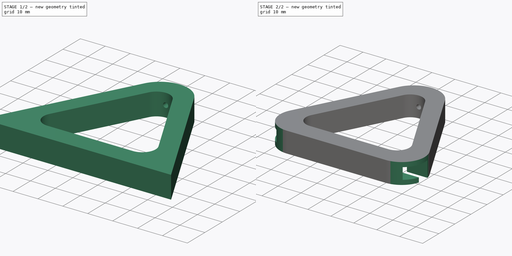
[diagram: build sequence overview — one tinted view per stage of 2, left to right]
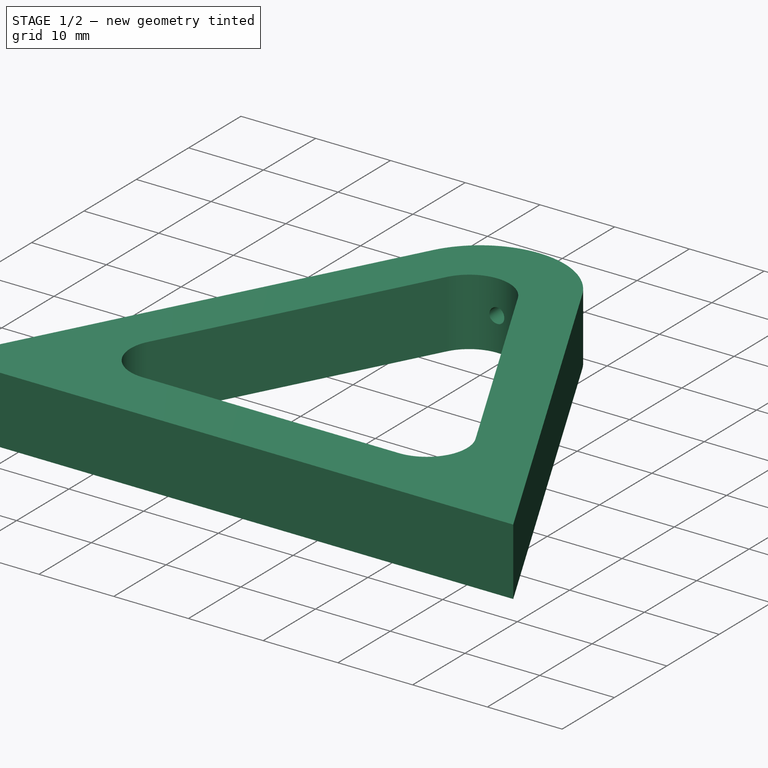
[diagram: stage 1 of 2 — iso view after this stage's code; geometry added in this stage tinted green]
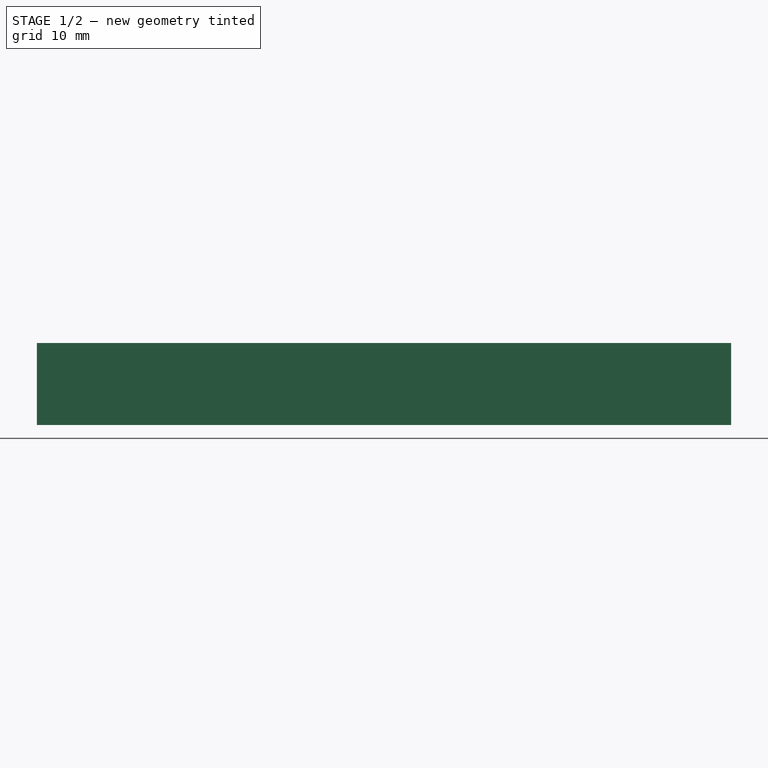
[diagram: stage 1 of 2 — front view after this stage's code; geometry added in this stage tinted green]
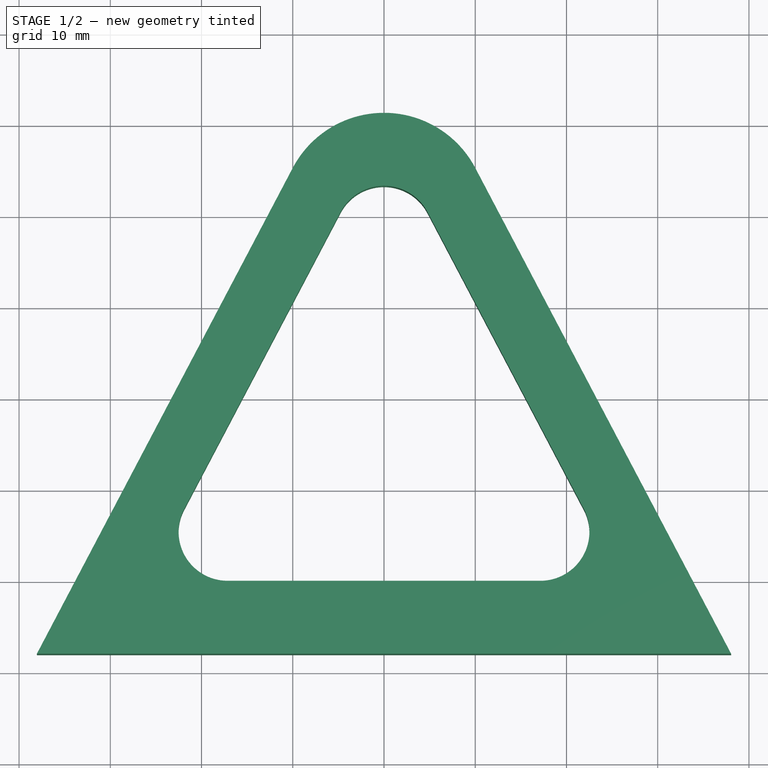
[diagram: stage 1 of 2 — top view after this stage's code; geometry added in this stage tinted green]
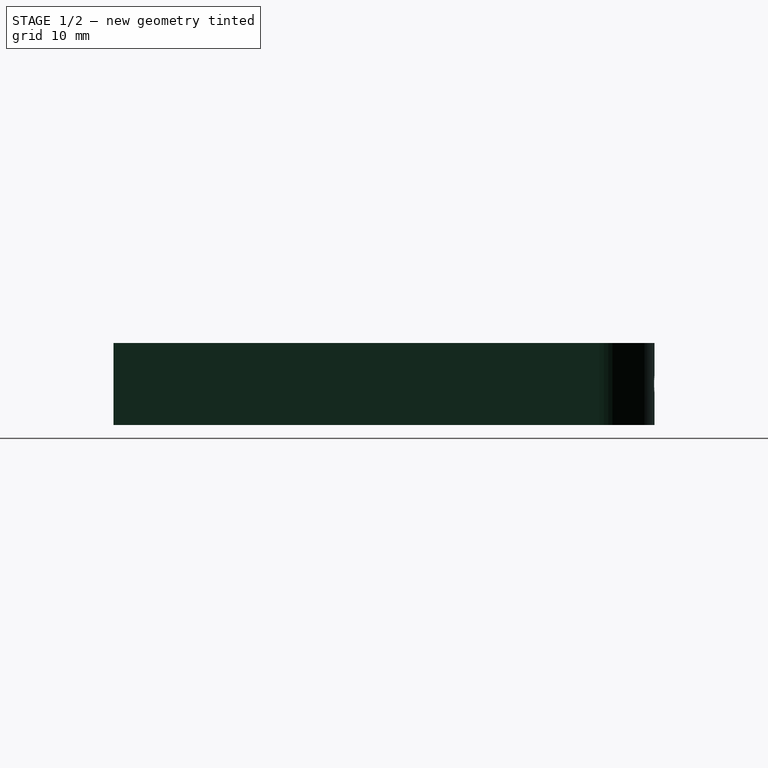
[diagram: stage 1 of 2 — right view after this stage's code; geometry added in this stage tinted green]
FCSTD DOCUMENT  (FreeCAD 0.20R29603 (Git))
Label: lamp hanger hook
License: All rights reserved
LicenseURL: http://en.wikipedia.org/wiki/All_rights_reserved
objects: Sketcher::SketchObject×3, PartDesign::Pocket×2, PartDesign::Pad×1, PartDesign::Fillet×1, PartDesign::Body×1
note: 12 computed .brp shape members not serialized (recipe doc carries the construction recipe); baked Part::Feature solids carry a one-line shape summary decoded from their .brp

FEATURE [Sketcher::SketchObject] Sketch
  FullyConstrained = true
  MapMode = 5
  Support = -> [XY_Plane]
  sketch-geometry (14):
    g0: LineSegment StartX=10 StartY=5.26571 StartZ=0 EndX=38.0482 EndY=-48 EndZ=0
    g1: LineSegment StartX=-38.0482 StartY=-48 StartZ=0 EndX=-10 EndY=5.26571 EndZ=0
    g2: ArcOfCircle CenterX=0 CenterY=0 CenterZ=0 NormalX=0 NormalY=0 NormalZ=1 AngleXU=0 Radius=11.3017 StartAngle=0.484678 EndAngle=2.65691
    g3: LineSegment StartX=-4.76 StartY=0.428554 StartZ=0 EndX=-21.8959 EndY=-32.1139 EndZ=0
    g4: LineSegment StartX=-17.1359 StartY=-40 StartZ=0 EndX=17.1359 EndY=-40 EndZ=0
    g5: LineSegment StartX=21.8959 StartY=-32.1139 StartZ=0 EndX=4.76 EndY=0.428554 EndZ=0
    g6: ArcOfCircle CenterX=4e-16 CenterY=-2.07793 CenterZ=0 NormalX=0 NormalY=0 NormalZ=1 AngleXU=0 Radius=5.37959 StartAngle=0.484678 EndAngle=2.65691
    g7: GeomPoint X=0 Y=3.30167 Z=0
    g8: GeomPoint X=0 Y=11.3017 Z=0
    g9: ArcOfCircle CenterX=-17.1359 CenterY=-34.6204 CenterZ=0 NormalX=0 NormalY=0 NormalZ=1 AngleXU=0 Radius=5.37959 StartAngle=2.65691 EndAngle=4.71239
    g10: GeomPoint X=-26.0485 Y=-40 Z=0
    g11: ArcOfCircle CenterX=17.1359 CenterY=-34.6204 CenterZ=0 NormalX=0 NormalY=0 NormalZ=1 AngleXU=0 Radius=5.37959 StartAngle=4.71239 EndAngle=6.76786
    g12: GeomPoint X=26.0485 Y=-40 Z=0
    g13: LineSegment StartX=-38.0482 StartY=-48 StartZ=0 EndX=38.0482 EndY=-48 EndZ=0
  constraints (30):
    c: Symmetric(g0,g1,g-2)
    c: Tangent(g1,g2) = 1.5708
    c: Tangent(g0,g2) = 1.5708
    c: DistanceX(g1,g0) = 20
    c: Coincident(g2,g-1)
    c: Parallel(g3,g1)
    c: Symmetric(g10,g12,g-2)
    c: Tangent(g3,g6) = -1.5708
    c: Tangent(g5,g6) = -1.5708
    c: Symmetric(g3,g5,g-2)
    c: PointOnObject(g7,g-2)
    c: PointOnObject(g8,g-2)
    c: PointOnObject(g8,g2)
    c: PointOnObject(g7,g6)
    c: DistanceY(g7,g8) = 8
    c: PointOnObject(g10,g4)
    c: Tangent(g3,g9) = -1.5708
    c: Tangent(g4,g9) = -1.5708
    c: PointOnObject(g12,g5)
    c: PointOnObject(g12,g4)
    c: Tangent(g5,g11) = -1.5708
    c: Tangent(g4,g11) = -1.5708
    c: Equal(g11,g9)
    c: Equal(g9,g6)
    c: Coincident(g1,g13)
    c: Coincident(g13,g0)
    c: DistanceX(g3,g5) = 9.52
    c: Angle(g4,g3) = 1.08612
    c: DistanceY(g4,g2) = 40
    c: DistanceY(g1,g4) = 8
FEATURE [PartDesign::Pad] Pad
  Direction = (0,0,1)
  Length = 9
  Length2 = 10
  Midplane = true
  Profile = -> Sketch
  ReferenceAxis = -> Sketch [N_Axis]
  Type = 0
FEATURE [Sketcher::SketchObject] Sketch001
  FullyConstrained = true
  MapMode = 5
  Placement = pos=(0,0,0) rot=(1,0,0;1.5708rad)
  Support = -> [XZ_Plane]
  sketch-geometry (1):
    g0: Circle CenterX=0 CenterY=0 CenterZ=0 NormalX=0 NormalY=0 NormalZ=1 AngleXU=0 Radius=1
  constraints (2):
    c: Diameter(g0) = 2
    c: Coincident(g0,g-1)
FEATURE [Sketcher::SketchObject] Sketch002
  ExternalGeometry = -> [Pad]
  FullyConstrained = true
  MapMode = 5
  Placement = pos=(0,0,0) rot=(0.57735,0.57735,0.57735;2.0944rad)
  Support = -> [YZ_Plane]
  sketch-geometry (6):
    g0: LineSegment StartX=-41 StartY=-5.5 StartZ=0 EndX=-41 EndY=-2.5 EndZ=0
    g1: LineSegment StartX=-41 StartY=-2.5 StartZ=0 EndX=-46 EndY=-2.5 EndZ=0
    g2: LineSegment StartX=-46 StartY=-2.5 StartZ=0 EndX=-46 EndY=2.5 EndZ=0
    g3: LineSegment StartX=-46 StartY=2.5 StartZ=0 EndX=-36 EndY=2.5 EndZ=0
    g4: LineSegment StartX=-36 StartY=2.5 StartZ=0 EndX=-36 EndY=-5.5 EndZ=0
    g5: LineSegment StartX=-36 StartY=-5.5 StartZ=0 EndX=-41 EndY=-5.5 EndZ=0
  constraints (17):
    c: Vertical(g0)
    c: Coincident(g0,g1)
    c: Horizontal(g1)
    c: Coincident(g1,g2)
    c: Coincident(g2,g3)
    c: Horizontal(g3)
    c: Coincident(g3,g4)
    c: Coincident(g5,g0)
    c: Horizontal(g5)
    c: Symmetric(g2,g1,g-1)
    c: DistanceY(g2,g2) = 5
    c: DistanceX(g-6,g1) = 2
    c: DistanceX(g1,g1) = 5
    c: DistanceY(g0,g0) = 3
    c: DistanceX(g5,g5) = 5
    c: Vertical(g4)
    c: Coincident(g4,g5)
FEATURE [PartDesign::Pocket] Pocket
  BaseFeature = -> Pad
  Direction = (0,1,-2e-16)
  Length = 5
  Length2 = 5
  Profile = -> Sketch001
  ReferenceAxis = -> Sketch001 [N_Axis]
  Type = 1
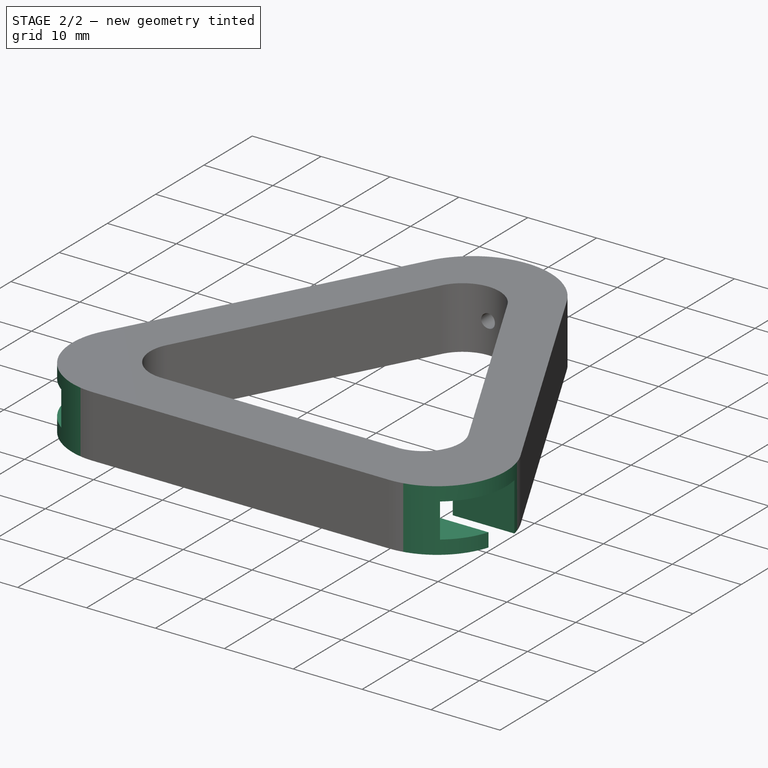
[diagram: stage 2 of 2 — iso view after this stage's code; geometry added in this stage tinted green]
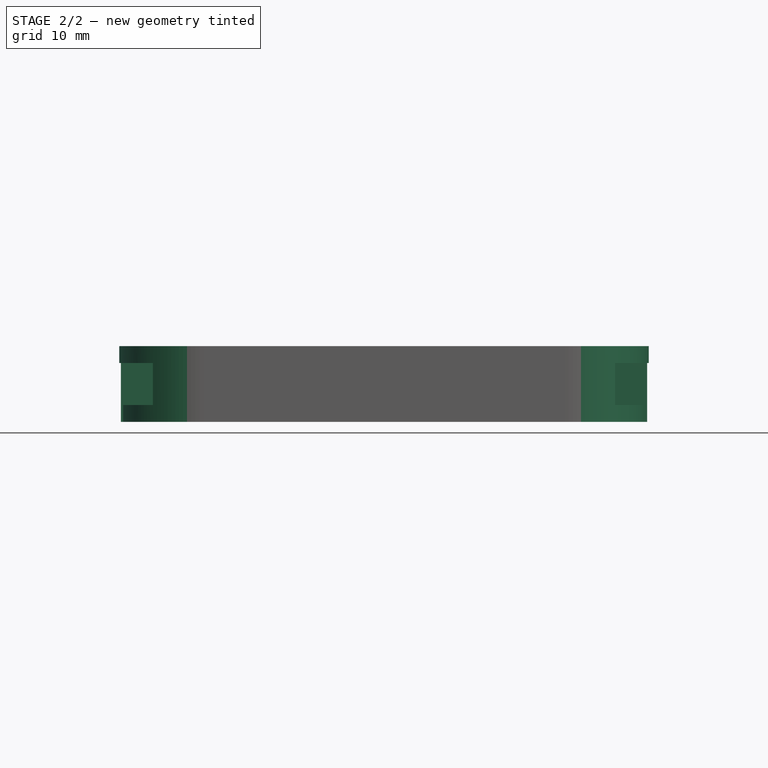
[diagram: stage 2 of 2 — front view after this stage's code; geometry added in this stage tinted green]
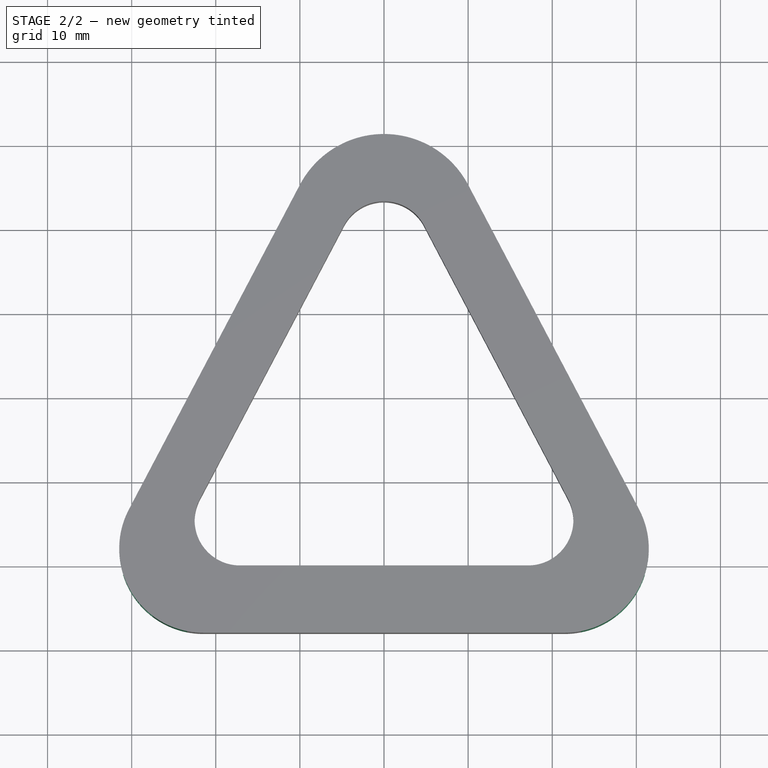
[diagram: stage 2 of 2 — top view after this stage's code; geometry added in this stage tinted green]
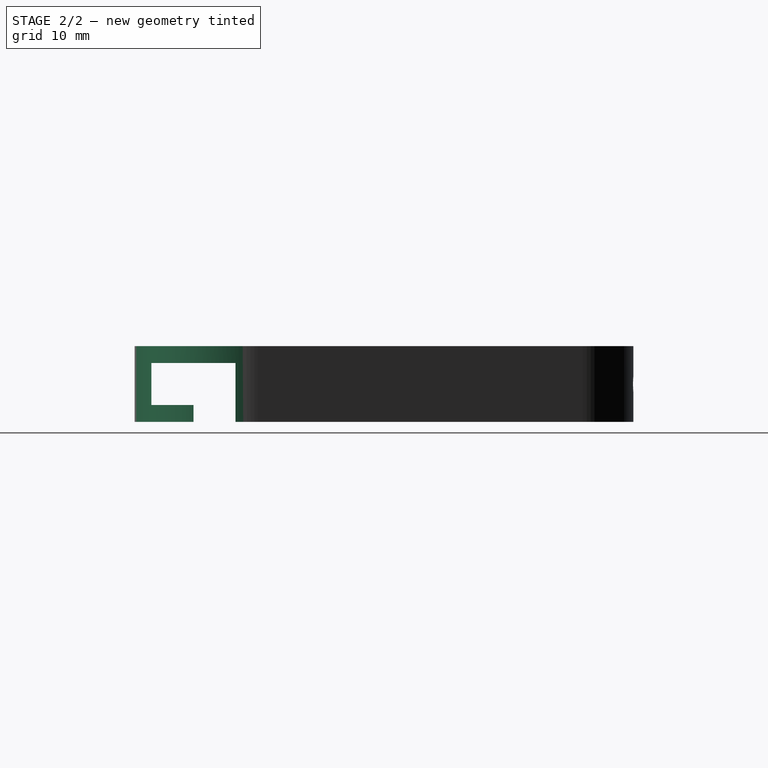
[diagram: stage 2 of 2 — right view after this stage's code; geometry added in this stage tinted green]
FEATURE [PartDesign::Pocket] Pocket001
  BaseFeature = -> Pocket
  Direction = (-1,2e-16,-3e-16)
  Length = 5
  Length2 = 5
  Midplane = true
  Profile = -> Sketch002
  ReferenceAxis = -> Sketch002 [N_Axis]
  Type = 1
FEATURE [PartDesign::Fillet] Fillet
  Base = -> Pocket001 [Edge47,Edge10]
  BaseFeature = -> Pocket001
  Radius = 10
  SupportTransform = false
  UseAllEdges = false
FEATURE [PartDesign::Body] Body
  Group = -> [Sketch,Pad,Sketch001,Sketch002,Pocket,Pocket001,Fillet]
  Origin = -> Origin
  Tip = -> Fillet
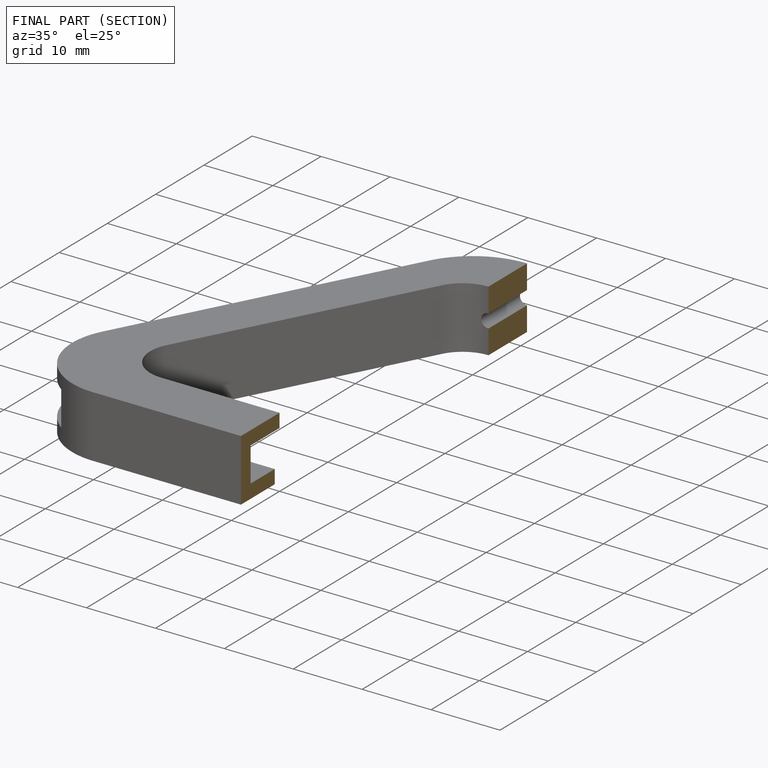
[diagram: finished part — half-section view (interior)]
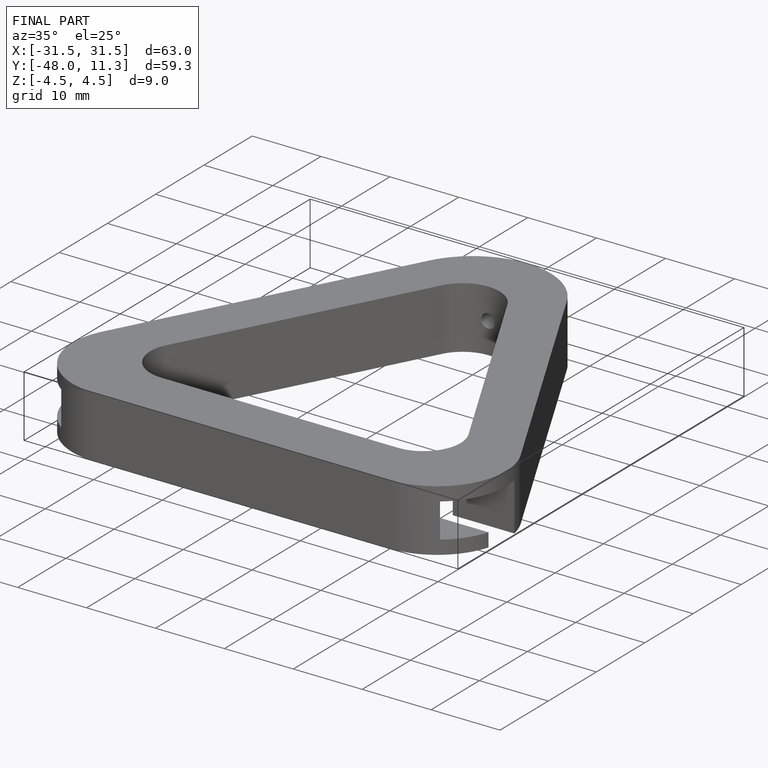
[diagram: finished part — iso view with bounding-box wireframe]
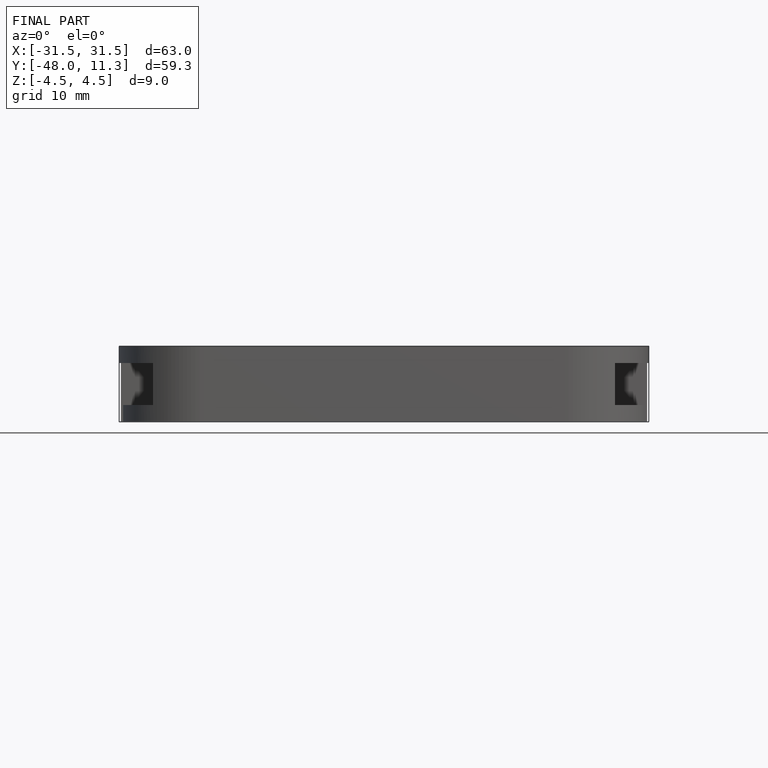
[diagram: finished part — front view with bounding-box wireframe]
